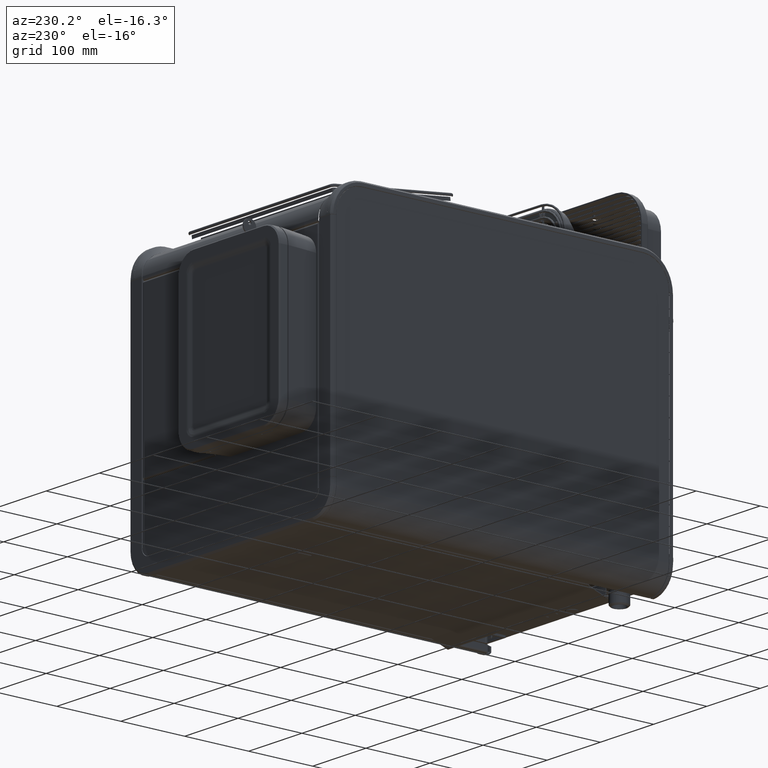
[diagram: clean part render]
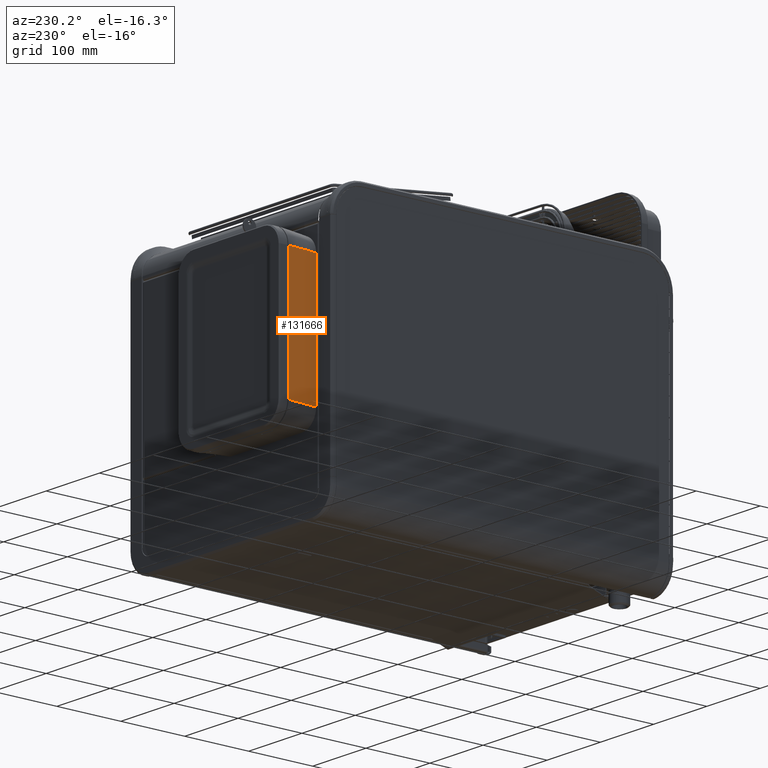
[diagram: same view with one face highlighted and labeled with its STEP entity id]
A machine part, auxiliary view. The second image highlights one B-rep face of the part: STEP entity #131666.
In plain terms, the highlighted cylindrical surface (partial cylindrical patch) has radius 700 mm, axis along (-0, -0, -1).
Its self-contained STEP definition (entity closure, byte-faithful):
#9362=CYLINDRICAL_SURFACE('',#142613,700.);
#19774=CIRCLE('',#142601,700.);
#19778=CIRCLE('',#142612,700.);
#27435=FACE_OUTER_BOUND('',#33710,.T.);
#33710=EDGE_LOOP('',(#122232,#122233,#122234,#122235));
#43107=LINE('',#319567,#52966);
#43109=LINE('',#319618,#52968);
#52966=VECTOR('',#172781,10.);
#52968=VECTOR('',#172787,10.);
#68017=VERTEX_POINT('',#319514);
#68018=VERTEX_POINT('',#319519);
#68027=VERTEX_POINT('',#319562);
#68028=VERTEX_POINT('',#319617);
#89239=EDGE_CURVE('',#68018,#68017,#19774,.T.);
#89250=EDGE_CURVE('',#68017,#68027,#43107,.T.);
#89257=EDGE_CURVE('',#68018,#68028,#43109,.T.);
#89275=EDGE_CURVE('',#68028,#68027,#19778,.T.);
#122232=ORIENTED_EDGE('',*,*,#89275,.F.);
#122233=ORIENTED_EDGE('',*,*,#89257,.F.);
#122234=ORIENTED_EDGE('',*,*,#89239,.T.);
#122235=ORIENTED_EDGE('',*,*,#89250,.T.);
#131666=ADVANCED_FACE('',(#27435),#9362,.T.);
#142601=AXIS2_PLACEMENT_3D('',#319520,#172764,#172765);
#142612=AXIS2_PLACEMENT_3D('',#319851,#172802,#172803);
#142613=AXIS2_PLACEMENT_3D('',#320053,#172804,#172805);
#172764=DIRECTION('center_axis',(1.24549340538872E-14,3.43221978615773E-12,
1.));
#172765=DIRECTION('ref_axis',(0.992436068244463,0.122762577553063,-4.33708873460031E-13));
#172781=DIRECTION('',(1.24549340538872E-14,3.43221978615773E-12,1.));
#172787=DIRECTION('',(1.24549340538872E-14,3.43221978615773E-12,1.));
#172802=DIRECTION('center_axis',(1.24549340538872E-14,3.43221978615773E-12,
1.));
#172803=DIRECTION('ref_axis',(0.992436068244463,0.122762577553063,-4.33708873460031E-13));
#172804=DIRECTION('center_axis',(-1.24549340538872E-14,-3.43221978615773E-12,
-1.));
#172805=DIRECTION('ref_axis',(0.992436068244463,0.122762577553063,-4.33708873460031E-13));
#319514=CARTESIAN_POINT('',(-160.999999999992,528.599999886845,-69.8000000002155));
#319519=CARTESIAN_POINT('',(-165.199999999992,575.399999886845,-69.8000000003761));
#319520=CARTESIAN_POINT('Origin',(533.705247771132,614.53380417399,-69.8000000005191));
#319562=CARTESIAN_POINT('',(-160.99999999999,528.599999887508,123.199999999784));
#319567=CARTESIAN_POINT('',(-160.999999999991,528.599999887177,26.6999999997845));
#319617=CARTESIAN_POINT('',(-165.199999999989,575.399999887508,123.199999999624));
#319618=CARTESIAN_POINT('',(-165.19999999999,575.399999887177,26.6999999996239));
#319851=CARTESIAN_POINT('Origin',(533.705247771134,614.533804174652,123.199999999481));
#320053=CARTESIAN_POINT('Origin',(533.705247771133,614.533804174321,26.6999999994809));